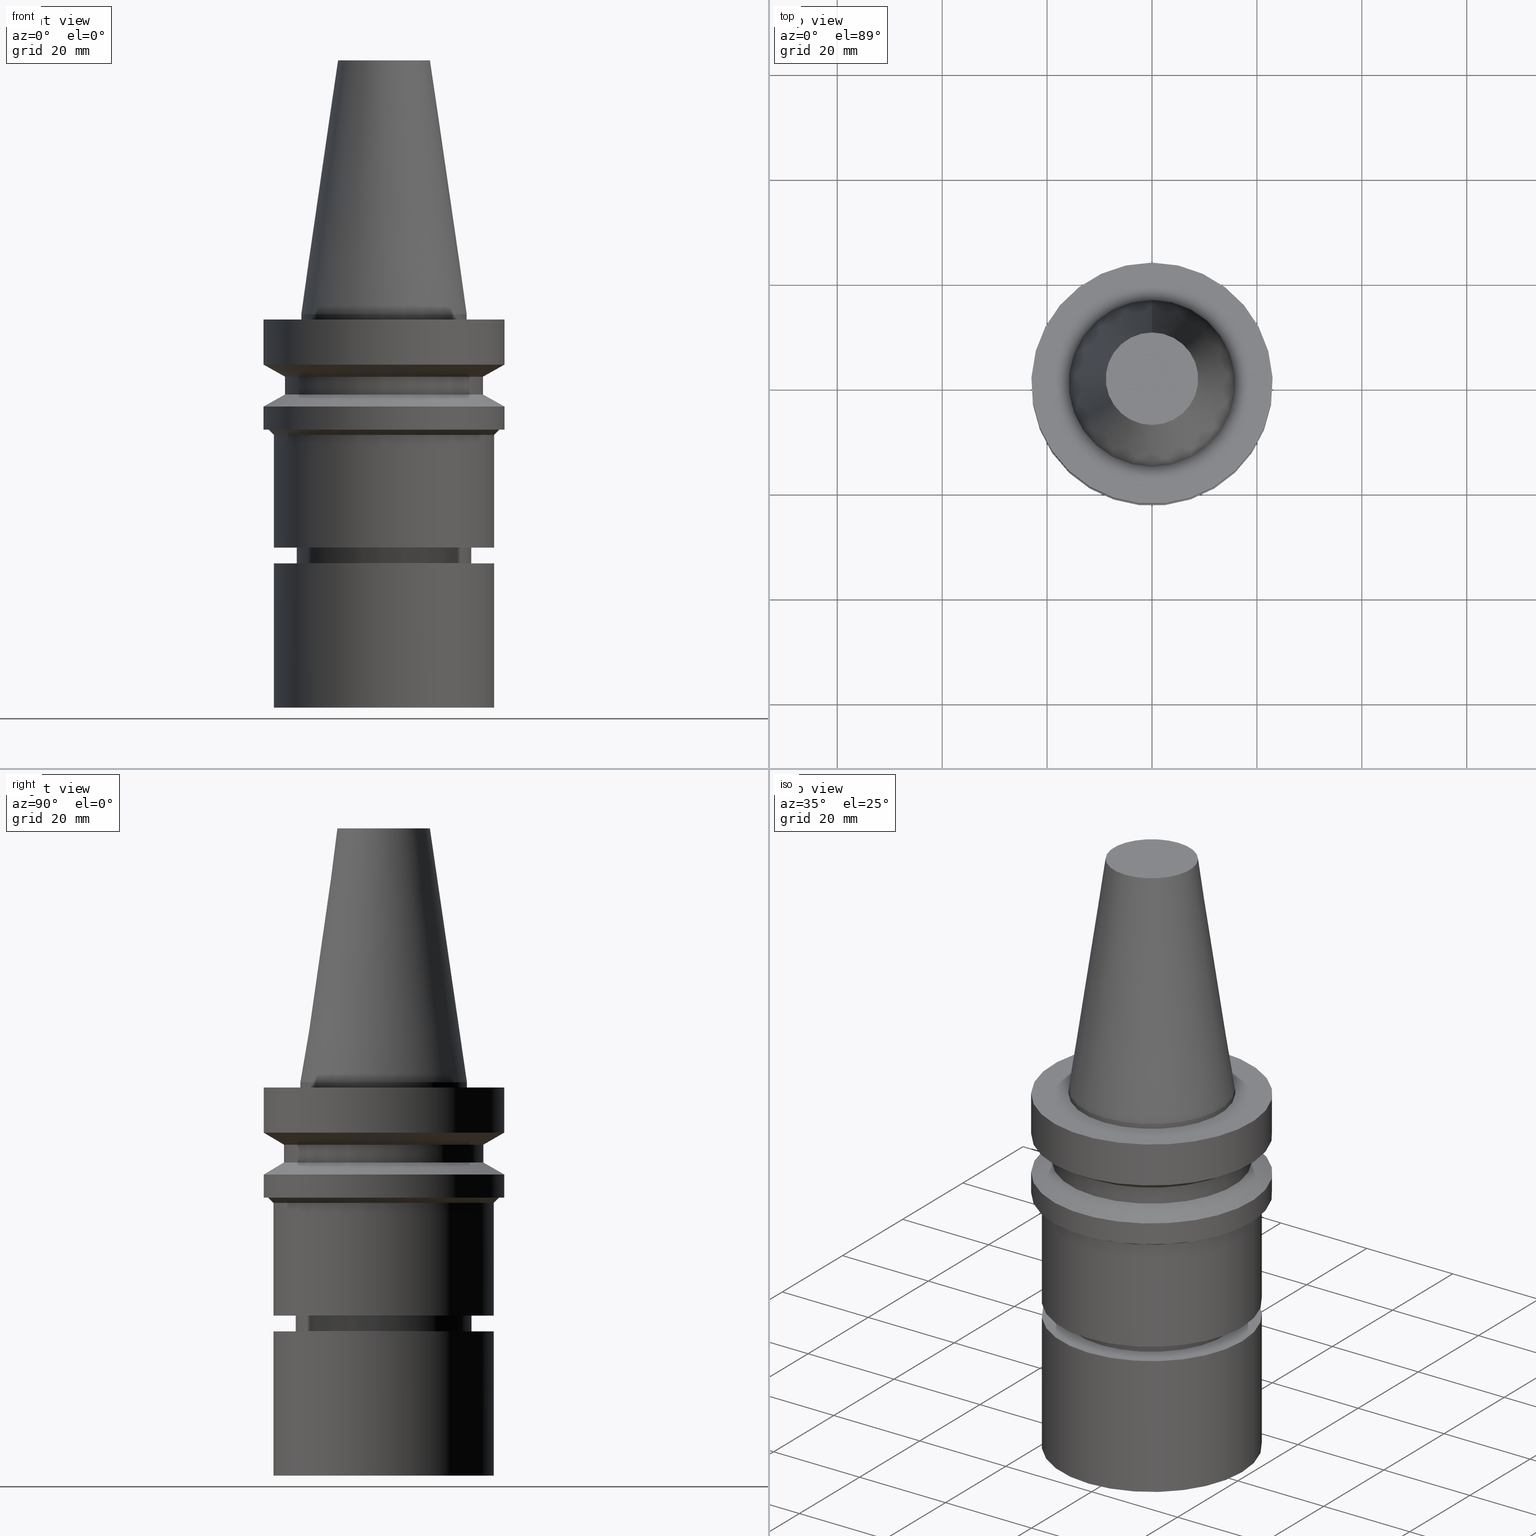
[diagram: canonical four-view strip — front | top / right | iso, engineering-drawing reading convention]
A machine part, canonical four-view strip (front | top / right | iso — engineering-drawing reading convention). The complete STEP part file that produces these views, byte-faithful:
ISO-10303-21;
HEADER;
FILE_DESCRIPTION((''),'1');
FILE_NAME('V:/90_\X2\53D65F9730C730FC30BF\X0\/00_\X2\6DE18DEF30C730FC30BF\X0\/ALL/BBT-BKUS\X2\FF76FF80FF9BFF78FF9E752852A05DE556F3\X0\201801/BBT30-MEGAER/BBT30-MEGAER25-75NL.stp','2018-02-02T07:26:27',(''),(''),'Spatial Interop R21 SP3','Kubotek KeyCreator 2011 V10.0.2 (22737)',' ');
FILE_SCHEMA(('automotive_design'));
ENDSEC;
DATA;
#1=MECHANICAL_DESIGN_GEOMETRIC_PRESENTATION_REPRESENTATION(' ',(#14,#15,#16,#17,#18,#19,#20,#21,#22,#23,#24,#25,#26,#27,#28,#29,#30,#31,#32,#33,#34,#35,#36,#37,#38,#39,#40,#41,#42,#43,#44,#45,#46,#47,#48,#49,#50,#51,#52,#53,#54,#55),#10);
#2=PRODUCT_DEFINITION_CONTEXT('',#56,'design');
#3=APPLICATION_PROTOCOL_DEFINITION('INTERNATIONAL STANDARD','automotive_design',1994,#56);
#4=PRODUCT_CATEGORY_RELATIONSHIP('NONE','NONE',#57,#58);
#5=SHAPE_DEFINITION_REPRESENTATION(#59,#60);
#6=PRODUCT_DEFINITION_CONTEXT('',#61,'design');
#7=APPLICATION_PROTOCOL_DEFINITION('INTERNATIONAL STANDARD','automotive_design',1994,#61);
#8=PRODUCT_CATEGORY_RELATIONSHIP('NONE','NONE',#62,#63);
#9=SHAPE_DEFINITION_REPRESENTATION(#64,#65);
#10= (GEOMETRIC_REPRESENTATION_CONTEXT(3)GLOBAL_UNCERTAINTY_ASSIGNED_CONTEXT((#68))GLOBAL_UNIT_ASSIGNED_CONTEXT((#70,#71,#72))REPRESENTATION_CONTEXT('NONE','WORKSPACE'));
#14=STYLED_ITEM('',(#74,#75),#76);
#15=STYLED_ITEM('',(#77),#78);
#16=STYLED_ITEM('',(#79,#80),#81);
#17=STYLED_ITEM('',(#82,#83),#84);
#18=STYLED_ITEM('',(#85,#86),#87);
#19=STYLED_ITEM('',(#88,#89),#90);
#20=STYLED_ITEM('',(#91,#92),#93);
#21=STYLED_ITEM('',(#94,#95),#96);
#22=STYLED_ITEM('',(#97),#98);
#23=STYLED_ITEM('',(#99,#100),#101);
#24=STYLED_ITEM('',(#102,#103),#104);
#25=STYLED_ITEM('',(#105),#106);
#26=STYLED_ITEM('',(#107),#108);
#27=STYLED_ITEM('',(#109,#110),#111);
#28=STYLED_ITEM('',(#112,#113),#114);
#29=STYLED_ITEM('',(#115),#116);
#30=STYLED_ITEM('',(#117),#118);
#31=STYLED_ITEM('',(#119),#120);
#32=STYLED_ITEM('',(#121),#122);
#33=STYLED_ITEM('',(#123),#124);
#34=STYLED_ITEM('',(#125,#126),#127);
#35=STYLED_ITEM('',(#128,#129),#130);
#36=STYLED_ITEM('',(#131,#132),#133);
#37=STYLED_ITEM('',(#134),#135);
#38=STYLED_ITEM('',(#136,#137),#138);
#39=STYLED_ITEM('',(#139,#140),#141);
#40=STYLED_ITEM('',(#142,#143),#144);
#41=STYLED_ITEM('',(#145,#146),#147);
#42=STYLED_ITEM('',(#148,#149),#150);
#43=STYLED_ITEM('',(#151),#152);
#44=STYLED_ITEM('',(#153),#154);
#45=STYLED_ITEM('',(#155),#156);
#46=STYLED_ITEM('',(#157),#158);
#47=STYLED_ITEM('',(#159,#160),#161);
#48=STYLED_ITEM('',(#162),#163);
#49=STYLED_ITEM('',(#164),#165);
#50=STYLED_ITEM('',(#166),#167);
#51=STYLED_ITEM('',(#168),#169);
#52=STYLED_ITEM('',(#170),#171);
#53=STYLED_ITEM('',(#172,#173),#174);
#54=STYLED_ITEM('',(#175,#176),#177);
#55=STYLED_ITEM('',(#178,#179),#180);
#56=APPLICATION_CONTEXT(' ');
#57=PRODUCT_CATEGORY('part','NONE');
#58=PRODUCT_RELATED_PRODUCT_CATEGORY('detail',' ',(#181));
#59=PRODUCT_DEFINITION_SHAPE('NONE','NONE',#182);
#60=ADVANCED_BREP_SHAPE_REPRESENTATION('Unnamed[1]',(#84,#183),#10);
#61=APPLICATION_CONTEXT(' ');
#62=PRODUCT_CATEGORY('part','NONE');
#63=PRODUCT_RELATED_PRODUCT_CATEGORY('detail',' ',(#184));
#64=PRODUCT_DEFINITION_SHAPE('NONE','NONE',#185);
#65=ADVANCED_BREP_SHAPE_REPRESENTATION('Unnamed[1]',(#174,#186),#10);
#68=UNCERTAINTY_MEASURE_WITH_UNIT(LENGTH_MEASURE(1.0E-006),#70,'','');
#70= (CONVERSION_BASED_UNIT('MILLIMETRE',#189)LENGTH_UNIT()NAMED_UNIT(#192));
#71= (NAMED_UNIT(#194)PLANE_ANGLE_UNIT()SI_UNIT($,.RADIAN.));
#72= (NAMED_UNIT(#194)SOLID_ANGLE_UNIT()SI_UNIT($,.STERADIAN.));
#74=PRESENTATION_STYLE_ASSIGNMENT((#200));
#75=PRESENTATION_STYLE_ASSIGNMENT((#201));
#76=ADVANCED_FACE('Unnamed[1]',(#202,#203),#204,.T.);
#77=PRESENTATION_STYLE_ASSIGNMENT((#205));
#78=EDGE_CURVE('Unnamed[1]',#206,#206,#207,.T.);
#79=PRESENTATION_STYLE_ASSIGNMENT((#208));
#80=PRESENTATION_STYLE_ASSIGNMENT((#209));
#81=ADVANCED_FACE('Unnamed[1]',(#210,#211),#212,.T.);
#82=PRESENTATION_STYLE_ASSIGNMENT((#213));
#83=PRESENTATION_STYLE_ASSIGNMENT((#214));
#84=MANIFOLD_SOLID_BREP('Unnamed[1]',#215);
#85=PRESENTATION_STYLE_ASSIGNMENT((#216));
#86=PRESENTATION_STYLE_ASSIGNMENT((#217));
#87=ADVANCED_FACE('Unnamed[1]',(#218,#219),#220,.T.);
#88=PRESENTATION_STYLE_ASSIGNMENT((#221));
#89=PRESENTATION_STYLE_ASSIGNMENT((#222));
#90=ADVANCED_FACE('Unnamed[1]',(#223,#224),#225,.T.);
#91=PRESENTATION_STYLE_ASSIGNMENT((#226));
#92=PRESENTATION_STYLE_ASSIGNMENT((#227));
#93=ADVANCED_FACE('Unnamed[1]',(#228,#229),#230,.T.);
#94=PRESENTATION_STYLE_ASSIGNMENT((#231));
#95=PRESENTATION_STYLE_ASSIGNMENT((#232));
#96=ADVANCED_FACE('Unnamed[1]',(#233,#234),#235,.T.);
#97=PRESENTATION_STYLE_ASSIGNMENT((#236));
#98=EDGE_CURVE('Unnamed[1]',#237,#237,#238,.T.);
#99=PRESENTATION_STYLE_ASSIGNMENT((#239));
#100=PRESENTATION_STYLE_ASSIGNMENT((#240));
#101=ADVANCED_FACE('Unnamed[1]',(#241,#242),#243,.T.);
#102=PRESENTATION_STYLE_ASSIGNMENT((#244));
#103=PRESENTATION_STYLE_ASSIGNMENT((#245));
#104=ADVANCED_FACE('Unnamed[1]',(#246),#247,.T.);
#105=PRESENTATION_STYLE_ASSIGNMENT((#248));
#106=EDGE_CURVE('Unnamed[1]',#249,#249,#250,.T.);
#107=PRESENTATION_STYLE_ASSIGNMENT((#251));
#108=EDGE_CURVE('Unnamed[1]',#252,#252,#253,.T.);
#109=PRESENTATION_STYLE_ASSIGNMENT((#254));
#110=PRESENTATION_STYLE_ASSIGNMENT((#255));
#111=ADVANCED_FACE('Unnamed[1]',(#256,#257),#258,.T.);
#112=PRESENTATION_STYLE_ASSIGNMENT((#259));
#113=PRESENTATION_STYLE_ASSIGNMENT((#260));
#114=ADVANCED_FACE('Unnamed[1]',(#261,#262),#263,.T.);
#115=PRESENTATION_STYLE_ASSIGNMENT((#264));
#116=EDGE_CURVE('Unnamed[1]',#265,#265,#266,.T.);
#117=PRESENTATION_STYLE_ASSIGNMENT((#267));
#118=EDGE_CURVE('Unnamed[1]',#268,#268,#269,.T.);
#119=PRESENTATION_STYLE_ASSIGNMENT((#270));
#120=EDGE_CURVE('Unnamed[1]',#271,#271,#272,.T.);
#121=PRESENTATION_STYLE_ASSIGNMENT((#273));
#122=EDGE_CURVE('Unnamed[1]',#274,#274,#275,.T.);
#123=PRESENTATION_STYLE_ASSIGNMENT((#276));
#124=EDGE_CURVE('Unnamed[1]',#277,#277,#278,.T.);
#125=PRESENTATION_STYLE_ASSIGNMENT((#279));
#126=PRESENTATION_STYLE_ASSIGNMENT((#280));
#127=ADVANCED_FACE('Unnamed[1]',(#281,#282),#283,.T.);
#128=PRESENTATION_STYLE_ASSIGNMENT((#284));
#129=PRESENTATION_STYLE_ASSIGNMENT((#285));
#130=ADVANCED_FACE('Unnamed[1]',(#286,#287),#288,.T.);
#131=PRESENTATION_STYLE_ASSIGNMENT((#289));
#132=PRESENTATION_STYLE_ASSIGNMENT((#290));
#133=ADVANCED_FACE('Unnamed[1]',(#291),#292,.T.);
#134=PRESENTATION_STYLE_ASSIGNMENT((#293));
#135=EDGE_CURVE('Unnamed[1]',#294,#294,#295,.T.);
#136=PRESENTATION_STYLE_ASSIGNMENT((#296));
#137=PRESENTATION_STYLE_ASSIGNMENT((#297));
#138=ADVANCED_FACE('Unnamed[1]',(#298,#299),#300,.T.);
#139=PRESENTATION_STYLE_ASSIGNMENT((#301));
#140=PRESENTATION_STYLE_ASSIGNMENT((#302));
#141=ADVANCED_FACE('Unnamed[1]',(#303,#304),#305,.T.);
#142=PRESENTATION_STYLE_ASSIGNMENT((#306));
#143=PRESENTATION_STYLE_ASSIGNMENT((#307));
#144=ADVANCED_FACE('Unnamed[1]',(#308,#309),#310,.T.);
#145=PRESENTATION_STYLE_ASSIGNMENT((#311));
#146=PRESENTATION_STYLE_ASSIGNMENT((#312));
#147=ADVANCED_FACE('Unnamed[1]',(#313,#314),#315,.T.);
#148=PRESENTATION_STYLE_ASSIGNMENT((#316));
#149=PRESENTATION_STYLE_ASSIGNMENT((#317));
#150=ADVANCED_FACE('Unnamed[1]',(#318,#319),#320,.T.);
#151=PRESENTATION_STYLE_ASSIGNMENT((#321));
#152=EDGE_CURVE('Unnamed[1]',#322,#322,#323,.T.);
#153=PRESENTATION_STYLE_ASSIGNMENT((#324));
#154=EDGE_CURVE('Unnamed[1]',#325,#325,#326,.T.);
#155=PRESENTATION_STYLE_ASSIGNMENT((#327));
#156=EDGE_CURVE('Unnamed[1]',#328,#328,#329,.T.);
#157=PRESENTATION_STYLE_ASSIGNMENT((#330));
#158=EDGE_CURVE('Unnamed[1]',#331,#331,#332,.T.);
#159=PRESENTATION_STYLE_ASSIGNMENT((#333));
#160=PRESENTATION_STYLE_ASSIGNMENT((#334));
#161=ADVANCED_FACE('Unnamed[1]',(#335),#336,.T.);
#162=PRESENTATION_STYLE_ASSIGNMENT((#337));
#163=EDGE_CURVE('Unnamed[1]',#338,#338,#339,.T.);
#164=PRESENTATION_STYLE_ASSIGNMENT((#340));
#165=EDGE_CURVE('Unnamed[1]',#341,#341,#342,.T.);
#166=PRESENTATION_STYLE_ASSIGNMENT((#343));
#167=EDGE_CURVE('Unnamed[1]',#344,#344,#345,.T.);
#168=PRESENTATION_STYLE_ASSIGNMENT((#346));
#169=EDGE_CURVE('Unnamed[1]',#347,#347,#348,.T.);
#170=PRESENTATION_STYLE_ASSIGNMENT((#349));
#171=EDGE_CURVE('Unnamed[1]',#350,#350,#351,.T.);
#172=PRESENTATION_STYLE_ASSIGNMENT((#352));
#173=PRESENTATION_STYLE_ASSIGNMENT((#353));
#174=MANIFOLD_SOLID_BREP('Unnamed[1]',#354);
#175=PRESENTATION_STYLE_ASSIGNMENT((#355));
#176=PRESENTATION_STYLE_ASSIGNMENT((#356));
#177=ADVANCED_FACE('Unnamed[1]',(#357,#358),#359,.T.);
#178=PRESENTATION_STYLE_ASSIGNMENT((#360));
#179=PRESENTATION_STYLE_ASSIGNMENT((#361));
#180=ADVANCED_FACE('Unnamed[1]',(#362),#363,.T.);
#181=PRODUCT('Unnamed[1]','Unnamed[1]','PART-Unnamed[1]-DESC',(#364));
#182=PRODUCT_DEFINITION('NONE','NONE',#365,#2);
#183=AXIS2_PLACEMENT_3D('',#366,#367,#368);
#184=PRODUCT('Unnamed[1]','Unnamed[1]','PART-Unnamed[1]-DESC',(#369));
#185=PRODUCT_DEFINITION('NONE','NONE',#370,#6);
#186=AXIS2_PLACEMENT_3D('',#371,#372,#373);
#189=LENGTH_MEASURE_WITH_UNIT(LENGTH_MEASURE(1.0),#374);
#192=DIMENSIONAL_EXPONENTS(1.0,0.0,0.0,0.0,0.0,0.0,0.0);
#194=DIMENSIONAL_EXPONENTS(0.0,0.0,0.0,0.0,0.0,0.0,0.0);
#200=SURFACE_STYLE_USAGE(.BOTH.,#375);
#201=CURVE_STYLE('',#376,POSITIVE_LENGTH_MEASURE(1000.0),#377);
#202=FACE_BOUND('',#378,.T.);
#203=FACE_BOUND('',#379,.T.);
#204=CYLINDRICAL_SURFACE('',#380,21.0000000000002);
#205=CURVE_STYLE('',#381,POSITIVE_LENGTH_MEASURE(1000.0),#382);
#206=VERTEX_POINT('',#383);
#207=CIRCLE('',#384,16.7499999999907);
#208=SURFACE_STYLE_USAGE(.BOTH.,#385);
#209=CURVE_STYLE('',#386,POSITIVE_LENGTH_MEASURE(1000.0),#387);
#210=FACE_BOUND('',#388,.T.);
#211=FACE_BOUND('',#389,.T.);
#212=CONICAL_SURFACE('',#390,15.4500000000003,0.52359877559805);
#213=SURFACE_STYLE_USAGE(.BOTH.,#391);
#214=CURVE_STYLE('',#392,POSITIVE_LENGTH_MEASURE(1000.0),#393);
#215=CLOSED_SHELL('',(#180,#147,#96,#130,#101,#177,#90,#111,#138,#141,#93,#76,#144,#127,#150,#114,#81,#161));
#216=SURFACE_STYLE_USAGE(.BOTH.,#394);
#217=CURVE_STYLE('',#395,POSITIVE_LENGTH_MEASURE(1000.0),#396);
#218=FACE_BOUND('',#397,.T.);
#219=FACE_BOUND('',#398,.T.);
#220=CYLINDRICAL_SURFACE('',#399,21.0);
#221=SURFACE_STYLE_USAGE(.BOTH.,#400);
#222=CURVE_STYLE('',#401,POSITIVE_LENGTH_MEASURE(1000.0),#402);
#223=FACE_BOUND('',#403,.T.);
#224=FACE_BOUND('',#404,.T.);
#225=CYLINDRICAL_SURFACE('',#405,19.0);
#226=SURFACE_STYLE_USAGE(.BOTH.,#406);
#227=CURVE_STYLE('',#407,POSITIVE_LENGTH_MEASURE(1000.0),#408);
#228=FACE_BOUND('',#409,.T.);
#229=FACE_BOUND('',#410,.T.);
#230=CONICAL_SURFACE('',#411,21.5000000000002,0.785398163397447);
#231=SURFACE_STYLE_USAGE(.BOTH.,#412);
#232=CURVE_STYLE('',#413,POSITIVE_LENGTH_MEASURE(1000.0),#414);
#233=FACE_BOUND('',#415,.T.);
#234=FACE_BOUND('',#416,.T.);
#235=CYLINDRICAL_SURFACE('',#417,15.875);
#236=CURVE_STYLE('',#418,POSITIVE_LENGTH_MEASURE(1000.0),#419);
#237=VERTEX_POINT('',#420);
#238=CIRCLE('',#421,15.875);
#239=SURFACE_STYLE_USAGE(.BOTH.,#422);
#240=CURVE_STYLE('',#423,POSITIVE_LENGTH_MEASURE(1000.0),#424);
#241=FACE_BOUND('',#425,.T.);
#242=FACE_BOUND('',#426,.T.);
#243=CYLINDRICAL_SURFACE('',#427,23.0);
#244=SURFACE_STYLE_USAGE(.BOTH.,#428);
#245=CURVE_STYLE('',#429,POSITIVE_LENGTH_MEASURE(1000.0),#430);
#246=FACE_OUTER_BOUND('',#431,.T.);
#247=PLANE('',#432);
#248=CURVE_STYLE('',#433,POSITIVE_LENGTH_MEASURE(1000.0),#434);
#249=VERTEX_POINT('',#435);
#250=CIRCLE('',#436,21.0);
#251=CURVE_STYLE('',#437,POSITIVE_LENGTH_MEASURE(1000.0),#438);
#252=VERTEX_POINT('',#439);
#253=CIRCLE('',#440,21.0);
#254=SURFACE_STYLE_USAGE(.BOTH.,#441);
#255=CURVE_STYLE('',#442,POSITIVE_LENGTH_MEASURE(1000.0),#443);
#256=FACE_BOUND('',#444,.T.);
#257=FACE_BOUND('',#445,.T.);
#258=CONICAL_SURFACE('',#446,21.0,1.04719755058882);
#259=SURFACE_STYLE_USAGE(.BOTH.,#447);
#260=CURVE_STYLE('',#448,POSITIVE_LENGTH_MEASURE(1000.0),#449);
#261=FACE_BOUND('',#450,.T.);
#262=FACE_BOUND('',#451,.T.);
#263=CYLINDRICAL_SURFACE('',#452,16.0);
#264=CURVE_STYLE('',#453,POSITIVE_LENGTH_MEASURE(1000.0),#454);
#265=VERTEX_POINT('',#455);
#266=CIRCLE('',#456,8.81650000198669);
#267=CURVE_STYLE('',#457,POSITIVE_LENGTH_MEASURE(1000.0),#458);
#268=VERTEX_POINT('',#459);
#269=CIRCLE('',#460,16.0);
#270=CURVE_STYLE('',#461,POSITIVE_LENGTH_MEASURE(1000.0),#462);
#271=VERTEX_POINT('',#463);
#272=CIRCLE('',#464,21.0000000000002);
#273=CURVE_STYLE('',#465,POSITIVE_LENGTH_MEASURE(1000.0),#466);
#274=VERTEX_POINT('',#467);
#275=CIRCLE('',#468,15.875);
#276=CURVE_STYLE('',#469,POSITIVE_LENGTH_MEASURE(1000.0),#470);
#277=VERTEX_POINT('',#471);
#278=CIRCLE('',#472,23.0);
#279=SURFACE_STYLE_USAGE(.BOTH.,#473);
#280=CURVE_STYLE('',#474,POSITIVE_LENGTH_MEASURE(1000.0),#475);
#281=FACE_BOUND('',#476,.T.);
#282=FACE_BOUND('',#477,.T.);
#283=CYLINDRICAL_SURFACE('',#478,16.7499999999962);
#284=SURFACE_STYLE_USAGE(.BOTH.,#479);
#285=CURVE_STYLE('',#480,POSITIVE_LENGTH_MEASURE(1000.0),#481);
#286=FACE_OUTER_BOUND('',#482,.T.);
#287=FACE_BOUND('',#483,.T.);
#288=PLANE('',#484);
#289=SURFACE_STYLE_USAGE(.BOTH.,#485);
#290=CURVE_STYLE('',#486,POSITIVE_LENGTH_MEASURE(1000.0),#487);
#291=FACE_OUTER_BOUND('',#488,.T.);
#292=PLANE('',#489);
#293=CURVE_STYLE('',#490,POSITIVE_LENGTH_MEASURE(1000.0),#491);
#294=VERTEX_POINT('',#492);
#295=CIRCLE('',#493,21.0000000000002);
#296=SURFACE_STYLE_USAGE(.BOTH.,#494);
#297=CURVE_STYLE('',#495,POSITIVE_LENGTH_MEASURE(1000.0),#496);
#298=FACE_BOUND('',#497,.T.);
#299=FACE_BOUND('',#498,.T.);
#300=CYLINDRICAL_SURFACE('',#499,23.0);
#301=SURFACE_STYLE_USAGE(.BOTH.,#500);
#302=CURVE_STYLE('',#501,POSITIVE_LENGTH_MEASURE(1000.0),#502);
#303=FACE_BOUND('',#503,.T.);
#304=FACE_OUTER_BOUND('',#504,.T.);
#305=PLANE('',#505);
#306=SURFACE_STYLE_USAGE(.BOTH.,#506);
#307=CURVE_STYLE('',#507,POSITIVE_LENGTH_MEASURE(1000.0),#508);
#308=FACE_BOUND('',#509,.T.);
#309=FACE_OUTER_BOUND('',#510,.T.);
#310=PLANE('',#511);
#311=SURFACE_STYLE_USAGE(.BOTH.,#512);
#312=CURVE_STYLE('',#513,POSITIVE_LENGTH_MEASURE(1000.0),#514);
#313=FACE_BOUND('',#515,.T.);
#314=FACE_BOUND('',#516,.T.);
#315=CONICAL_SURFACE('',#517,12.3457500009933,0.144815870013618);
#316=SURFACE_STYLE_USAGE(.BOTH.,#518);
#317=CURVE_STYLE('',#519,POSITIVE_LENGTH_MEASURE(1000.0),#520);
#318=FACE_BOUND('',#521,.T.);
#319=FACE_BOUND('',#522,.T.);
#320=CONICAL_SURFACE('',#523,16.3750000000008,1.0471975512007);
#321=CURVE_STYLE('',#524,POSITIVE_LENGTH_MEASURE(1000.0),#525);
#322=VERTEX_POINT('',#526);
#323=CIRCLE('',#527,19.0);
#324=CURVE_STYLE('',#528,POSITIVE_LENGTH_MEASURE(1000.0),#529);
#325=VERTEX_POINT('',#530);
#326=CIRCLE('',#531,23.0);
#327=CURVE_STYLE('',#532,POSITIVE_LENGTH_MEASURE(1000.0),#533);
#328=VERTEX_POINT('',#534);
#329=CIRCLE('',#535,14.9000000000005);
#330=CURVE_STYLE('',#536,POSITIVE_LENGTH_MEASURE(1000.0),#537);
#331=VERTEX_POINT('',#538);
#332=CIRCLE('',#539,22.0000000000002);
#333=SURFACE_STYLE_USAGE(.BOTH.,#540);
#334=CURVE_STYLE('',#541,POSITIVE_LENGTH_MEASURE(1000.0),#542);
#335=FACE_OUTER_BOUND('',#543,.T.);
#336=PLANE('',#544);
#337=CURVE_STYLE('',#545,POSITIVE_LENGTH_MEASURE(1000.0),#546);
#338=VERTEX_POINT('',#547);
#339=CIRCLE('',#548,23.0);
#340=CURVE_STYLE('',#549,POSITIVE_LENGTH_MEASURE(1000.0),#550);
#341=VERTEX_POINT('',#551);
#342=CIRCLE('',#552,23.0);
#343=CURVE_STYLE('',#553,POSITIVE_LENGTH_MEASURE(1000.0),#554);
#344=VERTEX_POINT('',#555);
#345=CIRCLE('',#556,19.0);
#346=CURVE_STYLE('',#557,POSITIVE_LENGTH_MEASURE(1000.0),#558);
#347=VERTEX_POINT('',#559);
#348=CIRCLE('',#560,16.7500000000017);
#349=CURVE_STYLE('',#561,POSITIVE_LENGTH_MEASURE(1000.0),#562);
#350=VERTEX_POINT('',#563);
#351=CIRCLE('',#564,16.0);
#352=SURFACE_STYLE_USAGE(.BOTH.,#565);
#353=CURVE_STYLE('',#566,POSITIVE_LENGTH_MEASURE(1000.0),#567);
#354=CLOSED_SHELL('',(#133,#104,#87));
#355=SURFACE_STYLE_USAGE(.BOTH.,#568);
#356=CURVE_STYLE('',#569,POSITIVE_LENGTH_MEASURE(1000.0),#570);
#357=FACE_BOUND('',#571,.T.);
#358=FACE_BOUND('',#572,.T.);
#359=CONICAL_SURFACE('',#573,21.0,1.04719755058881);
#360=SURFACE_STYLE_USAGE(.BOTH.,#574);
#361=CURVE_STYLE('',#575,POSITIVE_LENGTH_MEASURE(1000.0),#576);
#362=FACE_OUTER_BOUND('',#577,.T.);
#363=PLANE('',#578);
#364=PRODUCT_CONTEXT('',#56,'mechanical');
#365=PRODUCT_DEFINITION_FORMATION_WITH_SPECIFIED_SOURCE(' ','NONE',#181,.NOT_KNOWN.);
#366=CARTESIAN_POINT('',(0.0,0.0,0.0));
#367=DIRECTION('',(0.0,0.0,1.0));
#368=DIRECTION('',(1.0,0.0,0.0));
#369=PRODUCT_CONTEXT('',#61,'mechanical');
#370=PRODUCT_DEFINITION_FORMATION_WITH_SPECIFIED_SOURCE(' ','NONE',#184,.NOT_KNOWN.);
#371=CARTESIAN_POINT('',(0.0,0.0,0.0));
#372=DIRECTION('',(0.0,0.0,1.0));
#373=DIRECTION('',(1.0,0.0,0.0));
#374= (NAMED_UNIT(#192)LENGTH_UNIT()SI_UNIT(.MILLI.,.METRE.));
#375=SURFACE_SIDE_STYLE('',(#580));
#376=DRAUGHTING_PRE_DEFINED_CURVE_FONT('continuous');
#377=COLOUR_RGB('',0.0,1.0,0.0);
#378=EDGE_LOOP('',(#581));
#379=EDGE_LOOP('',(#582));
#380=AXIS2_PLACEMENT_3D('',#583,#584,#585);
#381=DRAUGHTING_PRE_DEFINED_CURVE_FONT('continuous');
#382=COLOUR_RGB('',0.0,1.0,0.0);
#383=CARTESIAN_POINT('',(2.72483912810281E-015,16.7499999999907,-44.4999999999992));
#384=AXIS2_PLACEMENT_3D('',#586,#587,#588);
#385=SURFACE_SIDE_STYLE('',(#589));
#386=DRAUGHTING_PRE_DEFINED_CURVE_FONT('continuous');
#387=COLOUR_RGB('',0.0,1.0,0.0);
#388=EDGE_LOOP('',(#590));
#389=EDGE_LOOP('',(#591));
#390=AXIS2_PLACEMENT_3D('',#592,#593,#594);
#391=SURFACE_SIDE_STYLE('',(#595));
#392=DRAUGHTING_PRE_DEFINED_CURVE_FONT('continuous');
#393=COLOUR_RGB('',0.0,1.0,0.0);
#394=SURFACE_SIDE_STYLE('',(#596));
#395=DRAUGHTING_PRE_DEFINED_CURVE_FONT('continuous');
#396=COLOUR_RGB('',0.0,1.0,0.0);
#397=EDGE_LOOP('',(#597));
#398=EDGE_LOOP('',(#598));
#399=AXIS2_PLACEMENT_3D('',#599,#600,#601);
#400=SURFACE_SIDE_STYLE('',(#602));
#401=DRAUGHTING_PRE_DEFINED_CURVE_FONT('continuous');
#402=COLOUR_RGB('',0.0,1.0,0.0);
#403=EDGE_LOOP('',(#603));
#404=EDGE_LOOP('',(#604));
#405=AXIS2_PLACEMENT_3D('',#605,#606,#607);
#406=SURFACE_SIDE_STYLE('',(#608));
#407=DRAUGHTING_PRE_DEFINED_CURVE_FONT('continuous');
#408=COLOUR_RGB('',0.0,1.0,0.0);
#409=EDGE_LOOP('',(#609));
#410=EDGE_LOOP('',(#610));
#411=AXIS2_PLACEMENT_3D('',#611,#612,#613);
#412=SURFACE_SIDE_STYLE('',(#614));
#413=DRAUGHTING_PRE_DEFINED_CURVE_FONT('continuous');
#414=COLOUR_RGB('',0.0,1.0,0.0);
#415=EDGE_LOOP('',(#615));
#416=EDGE_LOOP('',(#616));
#417=AXIS2_PLACEMENT_3D('',#617,#618,#619);
#418=DRAUGHTING_PRE_DEFINED_CURVE_FONT('continuous');
#419=COLOUR_RGB('',0.0,1.0,0.0);
#420=CARTESIAN_POINT('',(-1.95674482349743E-031,15.875,1.94412679364642E-015));
#421=AXIS2_PLACEMENT_3D('',#620,#621,#622);
#422=SURFACE_SIDE_STYLE('',(#623));
#423=DRAUGHTING_PRE_DEFINED_CURVE_FONT('continuous');
#424=COLOUR_RGB('',0.0,1.0,0.0);
#425=EDGE_LOOP('',(#624));
#426=EDGE_LOOP('',(#625));
#427=AXIS2_PLACEMENT_3D('',#626,#627,#628);
#428=SURFACE_SIDE_STYLE('',(#629));
#429=DRAUGHTING_PRE_DEFINED_CURVE_FONT('continuous');
#430=COLOUR_RGB('',0.0,1.0,0.0);
#431=EDGE_LOOP('',(#630));
#432=AXIS2_PLACEMENT_3D('',#631,#632,#633);
#433=DRAUGHTING_PRE_DEFINED_CURVE_FONT('continuous');
#434=COLOUR_RGB('',0.0,1.0,0.0);
#435=CARTESIAN_POINT('',(4.59242549680257E-015,21.0,-75.0));
#436=AXIS2_PLACEMENT_3D('',#634,#635,#636);
#437=DRAUGHTING_PRE_DEFINED_CURVE_FONT('continuous');
#438=COLOUR_RGB('',0.0,1.0,0.0);
#439=CARTESIAN_POINT('',(2.90853614797496E-015,21.0,-47.5));
#440=AXIS2_PLACEMENT_3D('',#637,#638,#639);
#441=SURFACE_SIDE_STYLE('',(#640));
#442=DRAUGHTING_PRE_DEFINED_CURVE_FONT('continuous');
#443=COLOUR_RGB('',0.0,1.0,0.0);
#444=EDGE_LOOP('',(#641));
#445=EDGE_LOOP('',(#642));
#446=AXIS2_PLACEMENT_3D('',#643,#644,#645);
#447=SURFACE_SIDE_STYLE('',(#646));
#448=DRAUGHTING_PRE_DEFINED_CURVE_FONT('continuous');
#449=COLOUR_RGB('',0.0,1.0,0.0);
#450=EDGE_LOOP('',(#647));
#451=EDGE_LOOP('',(#648));
#452=AXIS2_PLACEMENT_3D('',#649,#650,#651);
#453=DRAUGHTING_PRE_DEFINED_CURVE_FONT('continuous');
#454=COLOUR_RGB('',0.0,1.0,0.0);
#455=CARTESIAN_POINT('',(-2.96364525393659E-015,8.81650000198669,48.4));
#456=AXIS2_PLACEMENT_3D('',#652,#653,#654);
#457=DRAUGHTING_PRE_DEFINED_CURVE_FONT('continuous');
#458=COLOUR_RGB('',0.0,1.0,0.0);
#459=CARTESIAN_POINT('',(3.85119235297769E-015,16.0,-62.8947441116744));
#460=AXIS2_PLACEMENT_3D('',#655,#656,#657);
#461=DRAUGHTING_PRE_DEFINED_CURVE_FONT('continuous');
#462=COLOUR_RGB('',0.0,1.0,0.0);
#463=CARTESIAN_POINT('',(1.40834381901946E-015,21.0000000000002,-23.0));
#464=AXIS2_PLACEMENT_3D('',#658,#659,#660);
#465=DRAUGHTING_PRE_DEFINED_CURVE_FONT('continuous');
#466=COLOUR_RGB('',0.0,1.0,0.0);
#467=CARTESIAN_POINT('',(6.12323399573675E-017,15.875,-0.999999999999998));
#468=AXIS2_PLACEMENT_3D('',#661,#662,#663);
#469=DRAUGHTING_PRE_DEFINED_CURVE_FONT('continuous');
#470=COLOUR_RGB('',0.0,1.0,0.0);
#471=CARTESIAN_POINT('',(1.07768918324967E-015,23.0,-17.6));
#472=AXIS2_PLACEMENT_3D('',#664,#665,#666);
#473=SURFACE_SIDE_STYLE('',(#667));
#474=DRAUGHTING_PRE_DEFINED_CURVE_FONT('continuous');
#475=COLOUR_RGB('',0.0,1.0,0.0);
#476=EDGE_LOOP('',(#668));
#477=EDGE_LOOP('',(#669));
#478=AXIS2_PLACEMENT_3D('',#670,#671,#672);
#479=SURFACE_SIDE_STYLE('',(#673));
#480=DRAUGHTING_PRE_DEFINED_CURVE_FONT('continuous');
#481=COLOUR_RGB('',0.0,1.0,0.0);
#482=EDGE_LOOP('',(#674));
#483=EDGE_LOOP('',(#675));
#484=AXIS2_PLACEMENT_3D('',#676,#677,#678);
#485=SURFACE_SIDE_STYLE('',(#679));
#486=DRAUGHTING_PRE_DEFINED_CURVE_FONT('continuous');
#487=COLOUR_RGB('',0.0,1.0,0.0);
#488=EDGE_LOOP('',(#680));
#489=AXIS2_PLACEMENT_3D('',#681,#682,#683);
#490=DRAUGHTING_PRE_DEFINED_CURVE_FONT('continuous');
#491=COLOUR_RGB('',0.0,1.0,0.0);
#492=CARTESIAN_POINT('',(2.72483912810286E-015,21.0000000000002,-44.5));
#493=AXIS2_PLACEMENT_3D('',#684,#685,#686);
#494=SURFACE_SIDE_STYLE('',(#687));
#495=DRAUGHTING_PRE_DEFINED_CURVE_FONT('continuous');
#496=COLOUR_RGB('',0.0,1.0,0.0);
#497=EDGE_LOOP('',(#688));
#498=EDGE_LOOP('',(#689));
#499=AXIS2_PLACEMENT_3D('',#690,#691,#692);
#500=SURFACE_SIDE_STYLE('',(#693));
#501=DRAUGHTING_PRE_DEFINED_CURVE_FONT('continuous');
#502=COLOUR_RGB('',0.0,1.0,0.0);
#503=EDGE_LOOP('',(#694));
#504=EDGE_LOOP('',(#695));
#505=AXIS2_PLACEMENT_3D('',#696,#697,#698);
#506=SURFACE_SIDE_STYLE('',(#699));
#507=DRAUGHTING_PRE_DEFINED_CURVE_FONT('continuous');
#508=COLOUR_RGB('',0.0,1.0,0.0);
#509=EDGE_LOOP('',(#700));
#510=EDGE_LOOP('',(#701));
#511=AXIS2_PLACEMENT_3D('',#702,#703,#704);
#512=SURFACE_SIDE_STYLE('',(#705));
#513=DRAUGHTING_PRE_DEFINED_CURVE_FONT('continuous');
#514=COLOUR_RGB('',0.0,1.0,0.0);
#515=EDGE_LOOP('',(#706));
#516=EDGE_LOOP('',(#707));
#517=AXIS2_PLACEMENT_3D('',#708,#709,#710);
#518=SURFACE_SIDE_STYLE('',(#711));
#519=DRAUGHTING_PRE_DEFINED_CURVE_FONT('continuous');
#520=COLOUR_RGB('',0.0,1.0,0.0);
#521=EDGE_LOOP('',(#712));
#522=EDGE_LOOP('',(#713));
#523=AXIS2_PLACEMENT_3D('',#714,#715,#716);
#524=DRAUGHTING_PRE_DEFINED_CURVE_FONT('continuous');
#525=COLOUR_RGB('',0.0,1.0,0.0);
#526=CARTESIAN_POINT('',(7.29240495619202E-016,19.0,-11.90940108));
#527=AXIS2_PLACEMENT_3D('',#717,#718,#719);
#528=DRAUGHTING_PRE_DEFINED_CURVE_FONT('continuous');
#529=COLOUR_RGB('',0.0,1.0,0.0);
#530=CARTESIAN_POINT('',(1.34711147906209E-015,23.0,-22.0));
#531=AXIS2_PLACEMENT_3D('',#720,#721,#722);
#532=DRAUGHTING_PRE_DEFINED_CURVE_FONT('continuous');
#533=COLOUR_RGB('',0.0,1.0,0.0);
#534=CARTESIAN_POINT('',(3.96785562923745E-015,14.9000000000005,-64.8000000000004));
#535=AXIS2_PLACEMENT_3D('',#723,#724,#725);
#536=DRAUGHTING_PRE_DEFINED_CURVE_FONT('continuous');
#537=COLOUR_RGB('',0.0,1.0,0.0);
#538=CARTESIAN_POINT('',(1.34711147906209E-015,22.0000000000002,-22.0));
#539=AXIS2_PLACEMENT_3D('',#726,#727,#728);
#540=SURFACE_SIDE_STYLE('',(#729));
#541=DRAUGHTING_PRE_DEFINED_CURVE_FONT('continuous');
#542=COLOUR_RGB('',0.0,1.0,0.0);
#543=EDGE_LOOP('',(#730));
#544=AXIS2_PLACEMENT_3D('',#731,#732,#733);
#545=DRAUGHTING_PRE_DEFINED_CURVE_FONT('continuous');
#546=COLOUR_RGB('',0.0,1.0,0.0);
#547=CARTESIAN_POINT('',(6.12323399573674E-017,23.0,-0.999999999999997));
#548=AXIS2_PLACEMENT_3D('',#734,#735,#736);
#549=DRAUGHTING_PRE_DEFINED_CURVE_FONT('continuous');
#550=COLOUR_RGB('',0.0,1.0,0.0);
#551=CARTESIAN_POINT('',(5.87830463590729E-016,23.0,-9.59999999999999));
#552=AXIS2_PLACEMENT_3D('',#737,#738,#739);
#553=DRAUGHTING_PRE_DEFINED_CURVE_FONT('continuous');
#554=COLOUR_RGB('',0.0,1.0,0.0);
#555=CARTESIAN_POINT('',(9.36279151221199E-016,19.0,-15.29059892));
#556=AXIS2_PLACEMENT_3D('',#740,#741,#742);
#557=DRAUGHTING_PRE_DEFINED_CURVE_FONT('continuous');
#558=COLOUR_RGB('',0.0,1.0,0.0);
#559=CARTESIAN_POINT('',(3.09023239289715E-015,16.7500000000017,-50.467324865401));
#560=AXIS2_PLACEMENT_3D('',#743,#744,#745);
#561=DRAUGHTING_PRE_DEFINED_CURVE_FONT('continuous');
#562=COLOUR_RGB('',0.0,1.0,0.0);
#563=CARTESIAN_POINT('',(3.11674677386508E-015,16.0,-50.90033756729));
#564=AXIS2_PLACEMENT_3D('',#746,#747,#748);
#565=SURFACE_SIDE_STYLE('',(#749));
#566=DRAUGHTING_PRE_DEFINED_CURVE_FONT('continuous');
#567=COLOUR_RGB('',0.0,1.0,0.0);
#568=SURFACE_SIDE_STYLE('',(#750));
#569=DRAUGHTING_PRE_DEFINED_CURVE_FONT('continuous');
#570=COLOUR_RGB('',0.0,1.0,0.0);
#571=EDGE_LOOP('',(#751));
#572=EDGE_LOOP('',(#752));
#573=AXIS2_PLACEMENT_3D('',#753,#754,#755);
#574=SURFACE_SIDE_STYLE('',(#756));
#575=DRAUGHTING_PRE_DEFINED_CURVE_FONT('continuous');
#576=COLOUR_RGB('',0.0,1.0,0.0);
#577=EDGE_LOOP('',(#757));
#578=AXIS2_PLACEMENT_3D('',#758,#759,#760);
#580=SURFACE_STYLE_FILL_AREA(#761);
#581=ORIENTED_EDGE('',*,*,#135,.F.);
#582=ORIENTED_EDGE('',*,*,#120,.T.);
#583=CARTESIAN_POINT('',(2.06659147356116E-015,4.13318294712231E-015,-33.75));
#584=DIRECTION('',(6.12323399573677E-017,1.22464679914735E-016,-1.0));
#585=DIRECTION('',(-1.23259516440783E-032,1.0,1.22464679914735E-016));
#586=CARTESIAN_POINT('',(2.72483912810281E-015,5.44967825620563E-015,-44.4999999999992));
#587=DIRECTION('',(6.12323399573677E-017,1.22464679914735E-016,-1.0));
#588=DIRECTION('',(-1.23259516440783E-032,1.0,1.22464679914735E-016));
#589=SURFACE_STYLE_FILL_AREA(#762);
#590=ORIENTED_EDGE('',*,*,#156,.F.);
#591=ORIENTED_EDGE('',*,*,#118,.T.);
#592=CARTESIAN_POINT('',(3.90952399110757E-015,7.81904798221514E-015,-63.8473720558374));
#593=DIRECTION('',(-6.12323399573676E-017,-1.22464679914735E-016,1.0));
#594=DIRECTION('',(-1.23259516440783E-032,1.0,1.22464679914735E-016));
#595=SURFACE_STYLE_FILL_AREA(#763);
#596=SURFACE_STYLE_FILL_AREA(#764);
#597=ORIENTED_EDGE('',*,*,#106,.F.);
#598=ORIENTED_EDGE('',*,*,#108,.T.);
#599=CARTESIAN_POINT('',(3.75048082238877E-015,7.50096164477754E-015,-61.25));
#600=DIRECTION('',(6.12323399573677E-017,1.22464679914735E-016,-1.0));
#601=DIRECTION('',(-1.23259516440783E-032,1.0,1.22464679914735E-016));
#602=SURFACE_STYLE_FILL_AREA(#765);
#603=ORIENTED_EDGE('',*,*,#167,.F.);
#604=ORIENTED_EDGE('',*,*,#152,.T.);
#605=CARTESIAN_POINT('',(8.32759823420201E-016,1.6655196468404E-015,-13.6));
#606=DIRECTION('',(6.12323399573677E-017,1.22464679914735E-016,-1.0));
#607=DIRECTION('',(-1.23259516440783E-032,1.0,1.22464679914735E-016));
#608=SURFACE_STYLE_FILL_AREA(#766);
#609=ORIENTED_EDGE('',*,*,#120,.F.);
#610=ORIENTED_EDGE('',*,*,#158,.T.);
#611=CARTESIAN_POINT('',(1.37772764904077E-015,2.75545529808154E-015,-22.5));
#612=DIRECTION('',(-6.12323399573676E-017,-1.22464679914735E-016,1.0));
#613=DIRECTION('',(-1.23259516440783E-032,1.0,1.22464679914735E-016));
#614=SURFACE_STYLE_FILL_AREA(#767);
#615=ORIENTED_EDGE('',*,*,#122,.F.);
#616=ORIENTED_EDGE('',*,*,#98,.T.);
#617=CARTESIAN_POINT('',(3.06161699786838E-017,6.12323399573676E-017,-0.5));
#618=DIRECTION('',(6.12323399573677E-017,1.22464679914735E-016,-1.0));
#619=DIRECTION('',(-1.23259516440783E-032,1.0,1.22464679914735E-016));
#620=CARTESIAN_POINT('',(0.0,0.0,0.0));
#621=DIRECTION('',(6.12323399573677E-017,1.22464679914735E-016,-1.0));
#622=DIRECTION('',(-1.23259516440783E-032,1.0,1.22464679914735E-016));
#623=SURFACE_STYLE_FILL_AREA(#768);
#624=ORIENTED_EDGE('',*,*,#165,.F.);
#625=ORIENTED_EDGE('',*,*,#163,.T.);
#626=CARTESIAN_POINT('',(3.24531401774048E-016,6.49062803548097E-016,-5.3));
#627=DIRECTION('',(6.12323399573677E-017,1.22464679914735E-016,-1.0));
#628=DIRECTION('',(-1.23259516440783E-032,1.0,1.22464679914735E-016));
#629=SURFACE_STYLE_FILL_AREA(#769);
#630=ORIENTED_EDGE('',*,*,#108,.F.);
#631=CARTESIAN_POINT('',(2.90853614797496E-015,10.5,-47.5));
#632=DIRECTION('',(-6.12323399573677E-017,-1.22464679914735E-016,1.0));
#633=DIRECTION('',(1.23259516440783E-032,-1.0,-1.22464679914735E-016));
#634=CARTESIAN_POINT('',(4.59242549680257E-015,9.18485099360515E-015,-75.0));
#635=DIRECTION('',(6.12323399573677E-017,1.22464679914735E-016,-1.0));
#636=DIRECTION('',(-1.23259516440783E-032,1.0,1.22464679914735E-016));
#637=CARTESIAN_POINT('',(2.90853614797496E-015,5.81707229594993E-015,-47.5));
#638=DIRECTION('',(6.12323399573677E-017,1.22464679914735E-016,-1.0));
#639=DIRECTION('',(-1.23259516440783E-032,1.0,1.22464679914735E-016));
#640=SURFACE_STYLE_FILL_AREA(#770);
#641=ORIENTED_EDGE('',*,*,#124,.F.);
#642=ORIENTED_EDGE('',*,*,#167,.T.);
#643=CARTESIAN_POINT('',(1.00698416723543E-015,2.01396833447087E-015,-16.44529946));
#644=DIRECTION('',(6.12323399573677E-017,1.22464679914735E-016,-1.0));
#645=DIRECTION('',(-1.23259516440783E-032,1.0,1.22464679914735E-016));
#646=SURFACE_STYLE_FILL_AREA(#771);
#647=ORIENTED_EDGE('',*,*,#118,.F.);
#648=ORIENTED_EDGE('',*,*,#171,.T.);
#649=CARTESIAN_POINT('',(3.48396956342138E-015,6.96793912684277E-015,-56.8975408394822));
#650=DIRECTION('',(6.12323399573677E-017,1.22464679914735E-016,-1.0));
#651=DIRECTION('',(-1.23259516440783E-032,1.0,1.22464679914735E-016));
#652=CARTESIAN_POINT('',(-2.96364525393659E-015,-5.92729050787319E-015,48.4));
#653=DIRECTION('',(6.12323399573677E-017,1.22464679914735E-016,-1.0));
#654=DIRECTION('',(-1.23259516440783E-032,1.0,1.22464679914735E-016));
#655=CARTESIAN_POINT('',(3.85119235297769E-015,7.70238470595539E-015,-62.8947441116744));
#656=DIRECTION('',(6.12323399573677E-017,1.22464679914735E-016,-1.0));
#657=DIRECTION('',(-1.23259516440783E-032,1.0,1.22464679914735E-016));
#658=CARTESIAN_POINT('',(1.40834381901946E-015,2.81668763803891E-015,-23.0));
#659=DIRECTION('',(6.12323399573677E-017,1.22464679914735E-016,-1.0));
#660=DIRECTION('',(-1.23259516440783E-032,1.0,1.22464679914735E-016));
#661=CARTESIAN_POINT('',(6.12323399573677E-017,1.22464679914735E-016,-1.0));
#662=DIRECTION('',(6.12323399573677E-017,1.22464679914735E-016,-1.0));
#663=DIRECTION('',(-1.23259516440783E-032,1.0,1.22464679914735E-016));
#664=CARTESIAN_POINT('',(1.07768918324967E-015,2.15537836649934E-015,-17.6));
#665=DIRECTION('',(6.12323399573677E-017,1.22464679914735E-016,-1.0));
#666=DIRECTION('',(-1.23259516440783E-032,1.0,1.22464679914735E-016));
#667=SURFACE_STYLE_FILL_AREA(#772);
#668=ORIENTED_EDGE('',*,*,#169,.F.);
#669=ORIENTED_EDGE('',*,*,#78,.T.);
#670=CARTESIAN_POINT('',(2.90753576049998E-015,5.81507152099996E-015,-47.4836624327001));
#671=DIRECTION('',(6.12323399573676E-017,1.22464679914735E-016,-1.0));
#672=DIRECTION('',(-1.23259516440783E-032,1.0,1.22464679914735E-016));
#673=SURFACE_STYLE_FILL_AREA(#773);
#674=ORIENTED_EDGE('',*,*,#163,.F.);
#675=ORIENTED_EDGE('',*,*,#122,.T.);
#676=CARTESIAN_POINT('',(6.12323399573674E-017,19.4375,-0.999999999999998));
#677=DIRECTION('',(-6.12323399573677E-017,-1.22464679914735E-016,1.0));
#678=DIRECTION('',(1.23259516440783E-032,-1.0,-1.22464679914735E-016));
#679=SURFACE_STYLE_FILL_AREA(#774);
#680=ORIENTED_EDGE('',*,*,#106,.T.);
#681=CARTESIAN_POINT('',(4.59242549680257E-015,10.5,-75.0));
#682=DIRECTION('',(6.12323399573677E-017,1.22464679914735E-016,-1.0));
#683=DIRECTION('',(-1.23259516440783E-032,1.0,1.22464679914735E-016));
#684=CARTESIAN_POINT('',(2.72483912810286E-015,5.44967825620571E-015,-44.5));
#685=DIRECTION('',(6.12323399573677E-017,1.22464679914735E-016,-1.0));
#686=DIRECTION('',(-1.23259516440783E-032,1.0,1.22464679914735E-016));
#687=SURFACE_STYLE_FILL_AREA(#775);
#688=ORIENTED_EDGE('',*,*,#154,.F.);
#689=ORIENTED_EDGE('',*,*,#124,.T.);
#690=CARTESIAN_POINT('',(1.21240033115588E-015,2.42480066231176E-015,-19.8));
#691=DIRECTION('',(6.12323399573677E-017,1.22464679914735E-016,-1.0));
#692=DIRECTION('',(-1.23259516440783E-032,1.0,1.22464679914735E-016));
#693=SURFACE_STYLE_FILL_AREA(#776);
#694=ORIENTED_EDGE('',*,*,#158,.F.);
#695=ORIENTED_EDGE('',*,*,#154,.T.);
#696=CARTESIAN_POINT('',(1.34711147906209E-015,22.5000000000001,-22.0));
#697=DIRECTION('',(6.12323399573677E-017,1.22464679914735E-016,-1.0));
#698=DIRECTION('',(-1.23259516440783E-032,1.0,1.22464679914735E-016));
#699=SURFACE_STYLE_FILL_AREA(#777);
#700=ORIENTED_EDGE('',*,*,#78,.F.);
#701=ORIENTED_EDGE('',*,*,#135,.T.);
#702=CARTESIAN_POINT('',(2.72483912810284E-015,18.8749999999955,-44.4999999999996));
#703=DIRECTION('',(6.12323399573677E-017,-1.72079657162739E-013,-1.0));
#704=DIRECTION('',(1.05320129144053E-029,1.0,-1.72079657162739E-013));
#705=SURFACE_STYLE_FILL_AREA(#778);
#706=ORIENTED_EDGE('',*,*,#98,.F.);
#707=ORIENTED_EDGE('',*,*,#116,.T.);
#708=CARTESIAN_POINT('',(-1.4818226269683E-015,-2.96364525393659E-015,24.2));
#709=DIRECTION('',(6.12323399573677E-017,1.22464679914735E-016,-1.0));
#710=DIRECTION('',(-1.23259516440783E-032,1.0,1.22464679914735E-016));
#711=SURFACE_STYLE_FILL_AREA(#779);
#712=ORIENTED_EDGE('',*,*,#171,.F.);
#713=ORIENTED_EDGE('',*,*,#169,.T.);
#714=CARTESIAN_POINT('',(3.10348958338111E-015,6.20697916676222E-015,-50.6838312163455));
#715=DIRECTION('',(-6.12323399573677E-017,-1.22464679914735E-016,1.0));
#716=DIRECTION('',(-1.23259516440783E-032,1.0,1.22464679914735E-016));
#717=CARTESIAN_POINT('',(7.29240495619202E-016,1.4584809912384E-015,-11.90940108));
#718=DIRECTION('',(6.12323399573677E-017,1.22464679914735E-016,-1.0));
#719=DIRECTION('',(-1.23259516440783E-032,1.0,1.22464679914735E-016));
#720=CARTESIAN_POINT('',(1.34711147906209E-015,2.69422295812418E-015,-22.0));
#721=DIRECTION('',(6.12323399573677E-017,1.22464679914735E-016,-1.0));
#722=DIRECTION('',(-1.23259516440783E-032,1.0,1.22464679914735E-016));
#723=CARTESIAN_POINT('',(3.96785562923745E-015,7.93571125847489E-015,-64.8000000000004));
#724=DIRECTION('',(6.12323399573677E-017,1.22464679914735E-016,-1.0));
#725=DIRECTION('',(-1.23259516440783E-032,1.0,1.22464679914735E-016));
#726=CARTESIAN_POINT('',(1.34711147906209E-015,2.69422295812418E-015,-22.0));
#727=DIRECTION('',(6.12323399573677E-017,1.22464679914735E-016,-1.0));
#728=DIRECTION('',(-1.23259516440783E-032,1.0,1.22464679914735E-016));
#729=SURFACE_STYLE_FILL_AREA(#780);
#730=ORIENTED_EDGE('',*,*,#156,.T.);
#731=CARTESIAN_POINT('',(3.96785562923743E-015,7.45000000000027,-64.8000000000002));
#732=DIRECTION('',(6.12323399573677E-017,-2.7536245839605E-014,-1.0));
#733=DIRECTION('',(1.68128161366957E-030,1.0,-2.7536245839605E-014));
#734=CARTESIAN_POINT('',(6.12323399573677E-017,1.22464679914735E-016,-1.0));
#735=DIRECTION('',(6.12323399573677E-017,1.22464679914735E-016,-1.0));
#736=DIRECTION('',(-1.23259516440783E-032,1.0,1.22464679914735E-016));
#737=CARTESIAN_POINT('',(5.87830463590729E-016,1.17566092718146E-015,-9.59999999999999));
#738=DIRECTION('',(6.12323399573677E-017,1.22464679914735E-016,-1.0));
#739=DIRECTION('',(-1.23259516440783E-032,1.0,1.22464679914735E-016));
#740=CARTESIAN_POINT('',(9.36279151221199E-016,1.8725583024424E-015,-15.29059892));
#741=DIRECTION('',(6.12323399573677E-017,1.22464679914735E-016,-1.0));
#742=DIRECTION('',(-1.23259516440783E-032,1.0,1.22464679914735E-016));
#743=CARTESIAN_POINT('',(3.09023239289715E-015,6.18046478579429E-015,-50.467324865401));
#744=DIRECTION('',(6.12323399573677E-017,1.22464679914735E-016,-1.0));
#745=DIRECTION('',(-1.23259516440783E-032,1.0,1.22464679914735E-016));
#746=CARTESIAN_POINT('',(3.11674677386508E-015,6.23349354773015E-015,-50.90033756729));
#747=DIRECTION('',(6.12323399573677E-017,1.22464679914735E-016,-1.0));
#748=DIRECTION('',(-1.23259516440783E-032,1.0,1.22464679914735E-016));
#749=SURFACE_STYLE_FILL_AREA(#781);
#750=SURFACE_STYLE_FILL_AREA(#782);
#751=ORIENTED_EDGE('',*,*,#152,.F.);
#752=ORIENTED_EDGE('',*,*,#165,.T.);
#753=CARTESIAN_POINT('',(6.58535479604966E-016,1.31707095920993E-015,-10.75470054));
#754=DIRECTION('',(-6.12323399573677E-017,-1.22464679914735E-016,1.0));
#755=DIRECTION('',(-1.23259516440783E-032,1.0,1.22464679914735E-016));
#756=SURFACE_STYLE_FILL_AREA(#783);
#757=ORIENTED_EDGE('',*,*,#116,.F.);
#758=CARTESIAN_POINT('',(-2.96364525393659E-015,4.40825000099334,48.4));
#759=DIRECTION('',(-6.12323399573677E-017,-1.22464679914735E-016,1.0));
#760=DIRECTION('',(1.23259516440783E-032,-1.0,-1.22464679914735E-016));
#761=FILL_AREA_STYLE('',(#784));
#762=FILL_AREA_STYLE('',(#785));
#763=FILL_AREA_STYLE('',(#786));
#764=FILL_AREA_STYLE('',(#787));
#765=FILL_AREA_STYLE('',(#788));
#766=FILL_AREA_STYLE('',(#789));
#767=FILL_AREA_STYLE('',(#790));
#768=FILL_AREA_STYLE('',(#791));
#769=FILL_AREA_STYLE('',(#792));
#770=FILL_AREA_STYLE('',(#793));
#771=FILL_AREA_STYLE('',(#794));
#772=FILL_AREA_STYLE('',(#795));
#773=FILL_AREA_STYLE('',(#796));
#774=FILL_AREA_STYLE('',(#797));
#775=FILL_AREA_STYLE('',(#798));
#776=FILL_AREA_STYLE('',(#799));
#777=FILL_AREA_STYLE('',(#800));
#778=FILL_AREA_STYLE('',(#801));
#779=FILL_AREA_STYLE('',(#802));
#780=FILL_AREA_STYLE('',(#803));
#781=FILL_AREA_STYLE('',(#804));
#782=FILL_AREA_STYLE('',(#805));
#783=FILL_AREA_STYLE('',(#806));
#784=FILL_AREA_STYLE_COLOUR('',#807);
#785=FILL_AREA_STYLE_COLOUR('',#808);
#786=FILL_AREA_STYLE_COLOUR('',#809);
#787=FILL_AREA_STYLE_COLOUR('',#810);
#788=FILL_AREA_STYLE_COLOUR('',#811);
#789=FILL_AREA_STYLE_COLOUR('',#812);
#790=FILL_AREA_STYLE_COLOUR('',#813);
#791=FILL_AREA_STYLE_COLOUR('',#814);
#792=FILL_AREA_STYLE_COLOUR('',#815);
#793=FILL_AREA_STYLE_COLOUR('',#816);
#794=FILL_AREA_STYLE_COLOUR('',#817);
#795=FILL_AREA_STYLE_COLOUR('',#818);
#796=FILL_AREA_STYLE_COLOUR('',#819);
#797=FILL_AREA_STYLE_COLOUR('',#820);
#798=FILL_AREA_STYLE_COLOUR('',#821);
#799=FILL_AREA_STYLE_COLOUR('',#822);
#800=FILL_AREA_STYLE_COLOUR('',#823);
#801=FILL_AREA_STYLE_COLOUR('',#824);
#802=FILL_AREA_STYLE_COLOUR('',#825);
#803=FILL_AREA_STYLE_COLOUR('',#826);
#804=FILL_AREA_STYLE_COLOUR('',#827);
#805=FILL_AREA_STYLE_COLOUR('',#828);
#806=FILL_AREA_STYLE_COLOUR('',#829);
#807=COLOUR_RGB('',0.0,1.0,0.0);
#808=COLOUR_RGB('',0.0,1.0,0.0);
#809=COLOUR_RGB('',0.0,1.0,0.0);
#810=COLOUR_RGB('',0.0,1.0,0.0);
#811=COLOUR_RGB('',0.0,1.0,0.0);
#812=COLOUR_RGB('',0.0,1.0,0.0);
#813=COLOUR_RGB('',0.0,1.0,0.0);
#814=COLOUR_RGB('',0.0,1.0,0.0);
#815=COLOUR_RGB('',0.0,1.0,0.0);
#816=COLOUR_RGB('',0.0,1.0,0.0);
#817=COLOUR_RGB('',0.0,1.0,0.0);
#818=COLOUR_RGB('',0.0,1.0,0.0);
#819=COLOUR_RGB('',0.0,1.0,0.0);
#820=COLOUR_RGB('',0.0,1.0,0.0);
#821=COLOUR_RGB('',0.0,1.0,0.0);
#822=COLOUR_RGB('',0.0,1.0,0.0);
#823=COLOUR_RGB('',0.0,1.0,0.0);
#824=COLOUR_RGB('',0.0,1.0,0.0);
#825=COLOUR_RGB('',0.0,1.0,0.0);
#826=COLOUR_RGB('',0.0,1.0,0.0);
#827=COLOUR_RGB('',0.0,1.0,0.0);
#828=COLOUR_RGB('',0.0,1.0,0.0);
#829=COLOUR_RGB('',0.0,1.0,0.0);
ENDSEC;
END-ISO-10303-21;
